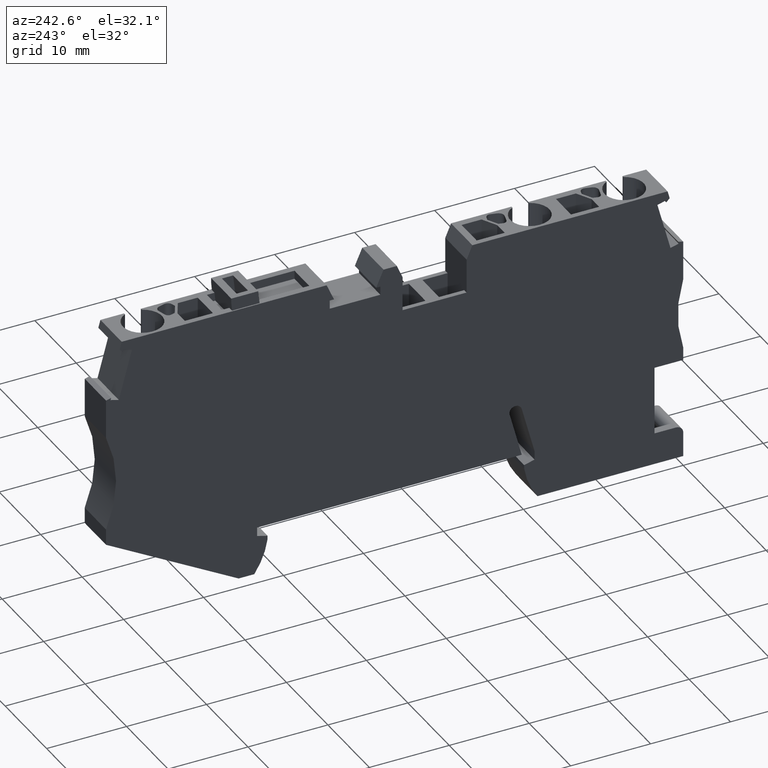
[diagram: clean part render]
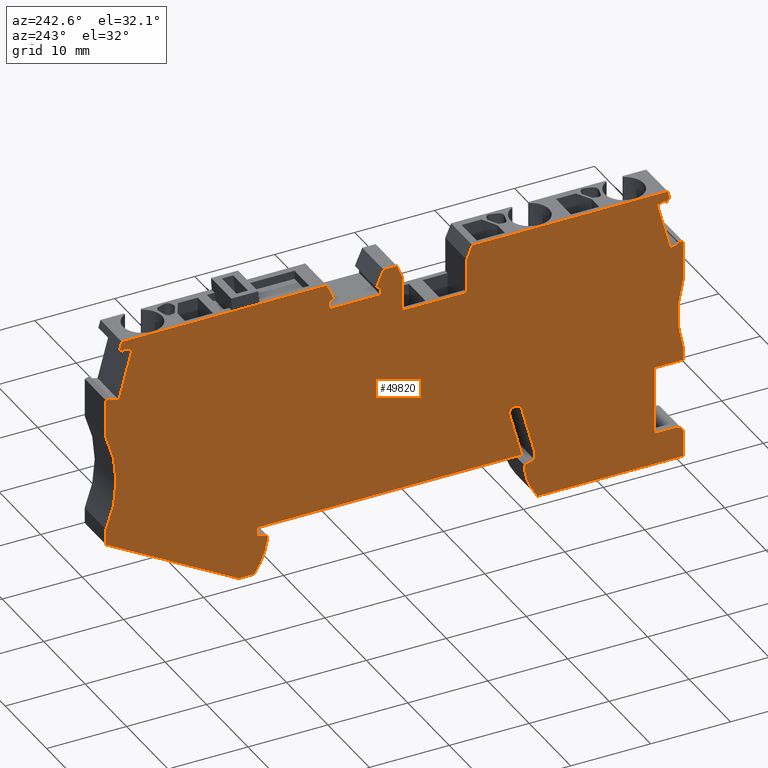
[diagram: same view with one face highlighted and labeled with its STEP entity id]
A machine part, auxiliary view. The second image highlights one B-rep face of the part: STEP entity #49820.
In plain terms, the highlighted planar face has unit normal (1, -0, 0).
Its self-contained STEP definition (entity closure, byte-faithful):
#3720=CARTESIAN_POINT('',(-20.4076385489783,-9.1500000000017,
48.5199999999973));
#3730=VERTEX_POINT('',#3720);
#3760=CARTESIAN_POINT('',(-30.6958559619297,-9.1500000000004,
48.5199999999973));
#3770=DIRECTION('',(-1.,1.2610745780961E-13,0.));
#3780=VECTOR('',#3770,1.);
#3790=LINE('',#3760,#3780);
#3800=CARTESIAN_POINT('',(4.01366750239472,-9.15000000000477,
48.5199999999973));
#3810=VERTEX_POINT('',#3800);
#3820=EDGE_CURVE('',#3810,#3730,#3790,.T.);
#4090=CARTESIAN_POINT('',(48.1299328899745,-10.112719444327,
48.5199999999973));
#4100=VERTEX_POINT('',#4090);
#4150=CARTESIAN_POINT('',(14.0748914776232,-44.1677608565863,
48.5199999999973));
#4160=DIRECTION('',(0.707106781187503,0.707106781185593,0.));
#4170=VECTOR('',#4160,1.);
#4180=LINE('',#4150,#4170);
#4190=CARTESIAN_POINT('',(47.6971897020823,-10.545462632218,
48.5199999999973));
#4200=VERTEX_POINT('',#4190);
#4210=EDGE_CURVE('',#4200,#4100,#4180,.T.);
#5030=CARTESIAN_POINT('',(-19.1288362261254,-10.559370046527,
48.5199999999973));
#5040=VERTEX_POINT('',#5030);
#5090=CARTESIAN_POINT('',(-30.4949591286781,-7.5138265937166,
48.5199999999973));
#5100=DIRECTION('',(0.9659258262891,-0.258819045102404,0.));
#5110=VECTOR('',#5100,1.);
#5120=LINE('',#5090,#5110);
#5130=CARTESIAN_POINT('',(-20.1623768602549,-10.2824336682674,
48.5199999999973));
#5140=VERTEX_POINT('',#5130);
#5150=EDGE_CURVE('',#5140,#5040,#5120,.T.);
#5990=CARTESIAN_POINT('',(-21.4584315387535,-40.4000000000016,
48.5199999999973));
#6000=VERTEX_POINT('',#5990);
#6150=CARTESIAN_POINT('',(-21.4584315387535,-40.4000491064028,
48.5199999999973));
#6160=VERTEX_POINT('',#6150);
#6190=CARTESIAN_POINT('',(-21.4584315387535,-39.8048173925994,
48.5199999999973));
#6200=DIRECTION('',(0.,1.,0.));
#6210=VECTOR('',#6200,1.);
#6220=LINE('',#6190,#6210);
#6230=EDGE_CURVE('',#6160,#6000,#6220,.T.);
#6440=CARTESIAN_POINT('',(-21.7289289220527,-16.1288855555983,
48.5199999999973));
#6450=VERTEX_POINT('',#6440);
#6500=CARTESIAN_POINT('',(-27.8621918696753,-39.0185344922397,
48.5199999999973));
#6510=DIRECTION('',(0.258819045103216,0.965925826288882,0.));
#6520=VECTOR('',#6510,1.);
#6530=LINE('',#6500,#6520);
#6540=CARTESIAN_POINT('',(-21.7994073205285,-16.3919145195456,
48.5199999999973));
#6550=VERTEX_POINT('',#6540);
#6560=EDGE_CURVE('',#6550,#6450,#6530,.T.);
#7010=CARTESIAN_POINT('',(29.6321672216754,-39.8483339501617,
48.5199999999973));
#7020=VERTEX_POINT('',#7010);
#7050=CARTESIAN_POINT('',(-36.6456801825381,-57.6074296381892,
48.5199999999973));
#7060=DIRECTION('',(0.965925826289086,0.258819045102457,0.));
#7070=VECTOR('',#7060,1.);
#7080=LINE('',#7050,#7070);
#7090=CARTESIAN_POINT('',(30.9321672216756,-39.5000000000013,
48.5199999999973));
#7100=VERTEX_POINT('',#7090);
#7110=EDGE_CURVE('',#7020,#7100,#7080,.T.);
#7870=CARTESIAN_POINT('',(21.8446672216768,-12.3250000000016,
48.5199999999973));
#7880=VERTEX_POINT('',#7870);
#8030=CARTESIAN_POINT('',(15.5196672216766,-12.3250000000012,
48.5199999999973));
#8040=VERTEX_POINT('',#8030);
#8070=CARTESIAN_POINT('',(-31.0856969427962,-12.3249999999985,
48.5199999999973));
#8080=DIRECTION('',(-1.,5.79813974610488E-14,0.));
#8090=VECTOR('',#8080,1.);
#8100=LINE('',#8070,#8090);
#8110=EDGE_CURVE('',#7880,#8040,#8100,.T.);
#8320=CARTESIAN_POINT('',(-4.12677643145729,-44.4000000000013,
48.5199999999973));
#8330=VERTEX_POINT('',#8320);
#8380=CARTESIAN_POINT('',(-35.0240117337573,-44.4000000000018,
48.5199999999973));
#8390=DIRECTION('',(-1.,-1.55014889813287E-14,0.));
#8400=VECTOR('',#8390,1.);
#8410=LINE('',#8380,#8400);
#8420=CARTESIAN_POINT('',(-22.3678330870616,-44.4000000000016,
48.5199999999973));
#8430=VERTEX_POINT('',#8420);
#8440=EDGE_CURVE('',#8330,#8430,#8410,.T.);
#8840=CARTESIAN_POINT('',(-34.5328734901456,-40.4000000000016,
48.5199999999973));
#8850=DIRECTION('',(1.,0.,0.));
#8860=VECTOR('',#8850,1.);
#8870=LINE('',#8840,#8860);
#8880=CARTESIAN_POINT('',(-18.7678330870612,-40.4000000000016,
48.5199999999973));
#8890=VERTEX_POINT('',#8880);
#8900=EDGE_CURVE('',#6000,#8890,#8870,.T.);
#9130=CARTESIAN_POINT('',(39.0261399010515,-38.8846282117038,
48.5199999999973));
#9140=DIRECTION('',(0.,0.,-1.));
#9150=DIRECTION('',(-1.,0.,0.));
#9160=AXIS2_PLACEMENT_3D('',#9130,#9140,#9150);
#9170=CIRCLE('',#9160,9.499999999999);
#9180=CARTESIAN_POINT('',(31.2911108748079,-44.4000000000014,
48.5199999999973));
#9190=VERTEX_POINT('',#9180);
#9200=CARTESIAN_POINT('',(29.6321672216751,-40.300000000002,
48.5199999999973));
#9210=VERTEX_POINT('',#9200);
#9220=EDGE_CURVE('',#9190,#9210,#9170,.T.);
#10500=CARTESIAN_POINT('',(-22.3678327783245,-16.3000793279225,
48.5199999999973));
#10510=VERTEX_POINT('',#10500);
#10660=CARTESIAN_POINT('',(-22.3678327783163,-21.2000000000005,
48.5199999999973));
#10670=VERTEX_POINT('',#10660);
#10700=CARTESIAN_POINT('',(-22.3678327783245,-39.6931569607141,
48.5199999999973));
#10710=DIRECTION('',(-2.05391259555654E-15,1.,0.));
#10720=VECTOR('',#10710,1.);
#10730=LINE('',#10700,#10720);
#10740=EDGE_CURVE('',#10670,#10510,#10730,.T.);
#12330=CARTESIAN_POINT('',(21.3167687545897,-11.2550000000016,
48.5199999999973));
#12340=VERTEX_POINT('',#12330);
#12370=CARTESIAN_POINT('',(7.22281664605164,-43.3264318571179,
48.5199999999973));
#12380=DIRECTION('',(0.402320578212711,0.915498854366618,0.));
#12390=VECTOR('',#12380,1.);
#12400=LINE('',#12370,#12390);
#12410=CARTESIAN_POINT('',(22.2418215966518,-9.15000000000501,
48.5199999999973));
#12420=VERTEX_POINT('',#12410);
#12430=EDGE_CURVE('',#12340,#12420,#12400,.T.);
#13180=CARTESIAN_POINT('',(13.4506669409568,-9.15000000000342,
48.5199999999973));
#13190=VERTEX_POINT('',#13180);
#13220=CARTESIAN_POINT('',(-30.6958559619307,-9.15000000000877,
48.5199999999973));
#13230=DIRECTION('',(-1.,-1.21042065259758E-13,0.));
#13240=VECTOR('',#13230,1.);
#13250=LINE('',#13220,#13240);
#13260=CARTESIAN_POINT('',(15.1225128467016,-9.15000000000321,
48.5199999999973));
#13270=VERTEX_POINT('',#13260);
#13280=EDGE_CURVE('',#13270,#13190,#13250,.T.);
#14120=CARTESIAN_POINT('',(49.2637417638806,-16.3919145195449,
48.5199999999973));
#14130=VERTEX_POINT('',#14120);
#14160=CARTESIAN_POINT('',(58.1565448087935,-49.5803073047281,
48.5199999999973));
#14170=DIRECTION('',(0.258819045103503,-0.965925826288805,0.));
#14180=VECTOR('',#14170,1.);
#14190=LINE('',#14160,#14180);
#14200=CARTESIAN_POINT('',(49.1932633654052,-16.1288855555997,
48.5199999999973));
#14210=VERTEX_POINT('',#14200);
#14220=EDGE_CURVE('',#14210,#14130,#14190,.T.);
#14490=CARTESIAN_POINT('',(49.8321672216693,-33.2000000000054,
48.5199999999973));
#14500=VERTEX_POINT('',#14490);
#14680=CARTESIAN_POINT('',(49.8321672216917,-21.2000000000095,
48.5199999999973));
#14690=VERTEX_POINT('',#14680);
#14720=CARTESIAN_POINT('',(63.5798943065489,-27.2000000000332,
48.5199999999973));
#14730=DIRECTION('',(-8.81339598071707E-18,-9.06081931640032E-18,1.));
#14740=DIRECTION('',(1.,-3.91076060424211E-13,8.81339598071354E-18));
#14750=AXIS2_PLACEMENT_3D('',#14720,#14730,#14740);
#14760=CIRCLE('',#14750,15.);
#14770=EDGE_CURVE('',#14690,#14500,#14760,.T.);
#14940=CARTESIAN_POINT('',(-22.3678330870598,-39.6931569228062,
48.5199999999973));
#14950=DIRECTION('',(3.85705356542587E-13,1.,0.));
#14960=VECTOR('',#14950,1.);
#14970=LINE('',#14940,#14960);
#14980=CARTESIAN_POINT('',(-22.3678330870604,-41.3000000000016,
48.5199999999973));
#14990=VERTEX_POINT('',#14980);
#15000=EDGE_CURVE('',#8430,#14990,#14970,.T.);
#15650=CARTESIAN_POINT('',(-20.6655984466231,-10.112719444326,
48.5199999999973));
#15660=VERTEX_POINT('',#15650);
#15710=CARTESIAN_POINT('',(-28.3934111192612,-38.9533089699361,
48.5199999999973));
#15720=DIRECTION('',(-0.258819045102936,-0.965925826288957,0.));
#15730=VECTOR('',#15720,1.);
#15740=LINE('',#15710,#15730);
#15750=EDGE_CURVE('',#3730,#15660,#15740,.T.);
#21910=CARTESIAN_POINT('',(49.8321672216756,-48.5582022579038,
48.5199999999973));
#21920=DIRECTION('',(-8.32667268468867E-17,-1.,0.));
#21930=VECTOR('',#21920,1.);
#21940=LINE('',#21910,#21930);
#21950=CARTESIAN_POINT('',(49.8321672216756,-35.2,48.5199999999973));
#21960=VERTEX_POINT('',#21950);
#21970=EDGE_CURVE('',#14500,#21960,#21940,.T.);
#24870=CARTESIAN_POINT('',(12.7321672216754,-15.1500000000016,
48.5199999999973));
#24880=VERTEX_POINT('',#24870);
#24910=CARTESIAN_POINT('',(12.7321672216755,-44.002895048406,
48.5199999999973));
#24920=DIRECTION('',(-5.53723733531797E-15,1.,0.));
#24930=VECTOR('',#24920,1.);
#24940=LINE('',#24910,#24930);
#24950=CARTESIAN_POINT('',(12.7321672216753,-10.8500000000034,
48.5199999999973));
#24960=VERTEX_POINT('',#24950);
#24970=EDGE_CURVE('',#24880,#24960,#24940,.T.);
#25270=CARTESIAN_POINT('',(-2.1678327783247,-38.4000000000014,
48.5199999999973));
#25280=VERTEX_POINT('',#25270);
#25310=CARTESIAN_POINT('',(-3.14670858760426,-42.0532142545319,
48.5199999999973));
#25320=DIRECTION('',(0.25881904510258,0.965925826289053,0.));
#25330=VECTOR('',#25320,1.);
#25340=LINE('',#25310,#25330);
#25350=CARTESIAN_POINT('',(-0.639544951389198,-32.6963521812904,
48.5199999999973));
#25360=VERTEX_POINT('',#25350);
#25370=EDGE_CURVE('',#25280,#25360,#25340,.T.);
#25630=CARTESIAN_POINT('',(-27.8621918696399,-39.0185344922441,
48.5199999999973));
#25640=DIRECTION('',(0.258819045101928,0.965925826289227,0.));
#25650=VECTOR('',#25640,1.);
#25660=LINE('',#25630,#25650);
#25670=CARTESIAN_POINT('',(-20.232855258731,-10.5454626322169,
48.5199999999973));
#25680=VERTEX_POINT('',#25670);
#25690=EDGE_CURVE('',#25680,#5140,#25660,.T.);
#25920=CARTESIAN_POINT('',(49.8321672216757,-48.5582022579038,
48.5199999999973));
#25930=DIRECTION('',(-5.55111512312578E-17,-1.,0.));
#25940=VECTOR('',#25930,1.);
#25950=LINE('',#25920,#25940);
#25960=CARTESIAN_POINT('',(49.8321672216757,-16.3000793279236,
48.5199999999973));
#25970=VERTEX_POINT('',#25960);
#25980=EDGE_CURVE('',#25970,#14690,#25950,.T.);
#26320=CARTESIAN_POINT('',(-18.7678330870612,-40.1351813420564,
48.5199999999973));
#26330=DIRECTION('',(0.,1.,0.));
#26340=VECTOR('',#26330,1.);
#26350=LINE('',#26320,#26340);
#26360=CARTESIAN_POINT('',(-18.7678330870612,-31.8000000000008,
48.5199999999973));
#26370=VERTEX_POINT('',#26360);
#26380=EDGE_CURVE('',#8890,#26370,#26350,.T.);
#26610=CARTESIAN_POINT('',(-35.0240117337567,-44.3999999999976,
48.5199999999973));
#26620=DIRECTION('',(-1.,5.79120085220097E-14,0.));
#26630=VECTOR('',#26620,1.);
#26640=LINE('',#26610,#26630);
#26650=CARTESIAN_POINT('',(33.2498082777127,-44.4000000000015,
48.5199999999973));
#26660=VERTEX_POINT('',#26650);
#26670=EDGE_CURVE('',#26660,#9190,#26640,.T.);
#29720=CARTESIAN_POINT('',(58.1565448087279,-49.58030730472,
48.5199999999973));
#29730=DIRECTION('',(0.258819045101928,-0.965925826289227,0.));
#29740=VECTOR('',#29730,1.);
#29750=LINE('',#29720,#29740);
#29760=CARTESIAN_POINT('',(47.6267113036061,-10.2824336682681,
48.5199999999973));
#29770=VERTEX_POINT('',#29760);
#29780=EDGE_CURVE('',#29770,#4200,#29750,.T.);
#30070=CARTESIAN_POINT('',(-3.76783277832419,-39.5000000000013,
48.5199999999973));
#30080=VERTEX_POINT('',#30070);
#30110=CARTESIAN_POINT('',(-33.4459564075282,-31.5477707406817,
48.5199999999973));
#30120=DIRECTION('',(0.965925826289041,-0.258819045102623,0.));
#30130=VECTOR('',#30120,1.);
#30140=LINE('',#30110,#30130);
#30150=CARTESIAN_POINT('',(-2.4678327783249,-39.8483339501617,
48.5199999999973));
#30160=VERTEX_POINT('',#30150);
#30170=EDGE_CURVE('',#30080,#30160,#30140,.T.);
#30450=CARTESIAN_POINT('',(-1.15584166251129,-31.8336749683071,
48.5199999999973));
#30460=VERTEX_POINT('',#30450);
#30490=CARTESIAN_POINT('',(-1.38550651789581,-32.6000000000014,
48.5199999999973));
#30500=DIRECTION('',(0.,0.,1.));
#30510=DIRECTION('',(1.,0.,0.));
#30520=AXIS2_PLACEMENT_3D('',#30490,#30500,#30510);
#30530=CIRCLE('',#30520,0.80000000000001);
#30540=CARTESIAN_POINT('',(-2.1582471789276,-32.3929447639187,
48.5199999999973));
#30550=VERTEX_POINT('',#30540);
#30560=EDGE_CURVE('',#30460,#30550,#30530,.T.);
#30860=CARTESIAN_POINT('',(21.8446672216767,-11.2550000000016,
48.5199999999973));
#30870=VERTEX_POINT('',#30860);
#30900=CARTESIAN_POINT('',(-30.9543174626305,-11.2550000000016,
48.5199999999973));
#30910=DIRECTION('',(1.,0.,0.));
#30920=VECTOR('',#30910,1.);
#30930=LINE('',#30900,#30920);
#30940=EDGE_CURVE('',#12340,#30870,#30930,.T.);
#31150=CARTESIAN_POINT('',(-3.76783277832419,-38.3999999999931,
48.5199999999973));
#31160=VERTEX_POINT('',#31150);
#31190=CARTESIAN_POINT('',(-3.76783277832419,-41.9769497935081,
48.5199999999973));
#31200=DIRECTION('',(0.,-1.,0.));
#31210=VECTOR('',#31200,1.);
#31220=LINE('',#31190,#31210);
#31230=EDGE_CURVE('',#31160,#30080,#31220,.T.);
#31460=CARTESIAN_POINT('',(46.5931706694759,-10.5593700465279,
48.5199999999973));
#31470=VERTEX_POINT('',#31460);
#31520=CARTESIAN_POINT('',(-33.5041072035475,-32.0213709685254,
48.5199999999973));
#31530=DIRECTION('',(0.9659258262891,0.258819045102404,0.));
#31540=VECTOR('',#31530,1.);
#31550=LINE('',#31520,#31540);
#31560=EDGE_CURVE('',#31470,#29770,#31550,.T.);
#32050=CARTESIAN_POINT('',(-2.46783277832346,-42.136569722682,
48.5199999999973));
#32060=DIRECTION('',(6.29260532569731E-13,-1.,0.));
#32070=VECTOR('',#32060,1.);
#32080=LINE('',#32050,#32070);
#32090=CARTESIAN_POINT('',(-2.46783277832461,-40.3000000000022,
48.5199999999973));
#32100=VERTEX_POINT('',#32090);
#32110=EDGE_CURVE('',#30160,#32100,#32080,.T.);
#33660=CARTESIAN_POINT('',(-20.7658666864001,-16.6688508978053,
48.5199999999973));
#33670=VERTEX_POINT('',#33660);
#33720=CARTESIAN_POINT('',(-31.2733580505142,-13.8533770723114,
48.5199999999973));
#33730=DIRECTION('',(-0.96592582628901,0.25881904510274,0.));
#33740=VECTOR('',#33730,1.);
#33750=LINE('',#33720,#33740);
#33760=EDGE_CURVE('',#33670,#6550,#33750,.T.);
#33960=CARTESIAN_POINT('',(29.6321672216711,-46.0779541276646,
48.5199999999973));
#33970=DIRECTION('',(6.9022565440946E-13,1.,0.));
#33980=VECTOR('',#33970,1.);
#33990=LINE('',#33960,#33980);
#34000=EDGE_CURVE('',#9210,#7020,#33990,.T.);
#35960=CARTESIAN_POINT('',(47.8719729923295,-9.15000000000206,
48.5199999999973));
#35970=VERTEX_POINT('',#35960);
#36000=CARTESIAN_POINT('',(58.7239074281488,-49.6499706748183,
48.5199999999973));
#36010=DIRECTION('',(0.258819045102926,-0.96592582628896,0.));
#36020=VECTOR('',#36010,1.);
#36030=LINE('',#36000,#36020);
#36040=EDGE_CURVE('',#35970,#4100,#36030,.T.);
#36600=CARTESIAN_POINT('',(48.2302011297503,-16.6688508978053,
48.5199999999973));
#36610=VERTEX_POINT('',#36600);
#36640=CARTESIAN_POINT('',(-34.3354672334353,-38.7922550583032,
48.5199999999973));
#36650=DIRECTION('',(-0.965925826288933,-0.258819045103026,0.));
#36660=VECTOR('',#36650,1.);
#36670=LINE('',#36640,#36660);
#36680=EDGE_CURVE('',#14130,#36610,#36670,.T.);
#37130=CARTESIAN_POINT('',(30.9321672216756,-46.2375740568389,
48.5199999999973));
#37140=DIRECTION('',(0.,1.,0.));
#37150=VECTOR('',#37140,1.);
#37160=LINE('',#37130,#37150);
#37170=CARTESIAN_POINT('',(30.9321672216757,-38.4000000000014,
48.5199999999973));
#37180=VERTEX_POINT('',#37170);
#37190=EDGE_CURVE('',#7100,#37180,#37160,.T.);
#38960=CARTESIAN_POINT('',(-33.4769262663805,-31.8000000000008,
48.5199999999973));
#38970=DIRECTION('',(-1.,0.,0.));
#38980=VECTOR('',#38970,1.);
#38990=LINE('',#38960,#38980);
#39000=CARTESIAN_POINT('',(-22.3678327783246,-31.8000000000008,
48.5199999999973));
#39010=VERTEX_POINT('',#39000);
#39020=EDGE_CURVE('',#26370,#39010,#38990,.T.);
#39290=CARTESIAN_POINT('',(-4.69574524451491,-41.8630164687906,
48.5199999999973));
#39300=DIRECTION('',(-0.258819045102717,-0.965925826289016,0.));
#39310=VECTOR('',#39300,1.);
#39320=LINE('',#39290,#39310);
#39330=EDGE_CURVE('',#30550,#31160,#39320,.T.);
#39510=CARTESIAN_POINT('',(19.0732001481594,-44.7814759919552,
48.5199999999973));
#39520=DIRECTION('',(-0.389303997086923,0.921109330021222,0.));
#39530=VECTOR('',#39520,1.);
#39540=LINE('',#39510,#39530);
#39550=CARTESIAN_POINT('',(4.73216722167551,-10.8500000000032,
48.5199999999973));
#39560=VERTEX_POINT('',#39550);
#39570=EDGE_CURVE('',#39560,#3810,#39540,.T.);
#40290=CARTESIAN_POINT('',(-0.588529799346603,-42.3673191137592,
48.5199999999973));
#40300=DIRECTION('',(-0.389303997086923,-0.921109330021222,0.));
#40310=VECTOR('',#40300,1.);
#40320=LINE('',#40290,#40310);
#40330=EDGE_CURVE('',#13190,#24960,#40320,.T.);
#41710=CARTESIAN_POINT('',(-30.695855961931,-9.15000000001113,
48.5199999999973));
#41720=DIRECTION('',(1.,1.1550482792444E-13,0.));
#41730=VECTOR('',#41720,1.);
#41740=LINE('',#41710,#41730);
#41750=EDGE_CURVE('',#12420,#35970,#41740,.T.);
#41940=CARTESIAN_POINT('',(31.4487054040428,-46.3009969707504,
48.5199999999973));
#41950=DIRECTION('',(0.402320578211921,-0.915498854366965,0.));
#41960=VECTOR('',#41950,1.);
#41970=LINE('',#41940,#41960);
#41980=CARTESIAN_POINT('',(16.0475656887622,-11.2550000000016,
48.5199999999973));
#41990=VERTEX_POINT('',#41980);
#42000=EDGE_CURVE('',#13270,#41990,#41970,.T.);
#42240=CARTESIAN_POINT('',(15.5196672216766,-44.345157011923,
48.5199999999973));
#42250=DIRECTION('',(0.,1.,0.));
#42260=VECTOR('',#42250,1.);
#42270=LINE('',#42240,#42260);
#42280=CARTESIAN_POINT('',(15.5196672216767,-11.2550000000016,
48.5199999999973));
#42290=VERTEX_POINT('',#42280);
#42300=EDGE_CURVE('',#8040,#42290,#42270,.T.);
#42560=CARTESIAN_POINT('',(-21.4678330870606,-41.3000000000016,
48.5199999999973));
#42570=DIRECTION('',(0.,0.,1.));
#42580=DIRECTION('',(1.,0.,0.));
#42590=AXIS2_PLACEMENT_3D('',#42560,#42570,#42580);
#42600=CIRCLE('',#42590,0.89999999999984);
#42610=EDGE_CURVE('',#6160,#14990,#42600,.T.);
#43130=CARTESIAN_POINT('',(-29.7042555077718,-1.07406238320151,
48.5199999999973));
#43140=DIRECTION('',(-0.707106781187495,0.7071067811856,0.));
#43150=VECTOR('',#43140,1.);
#43160=LINE('',#43130,#43150);
#43170=EDGE_CURVE('',#25680,#15660,#43160,.T.);
#43350=CARTESIAN_POINT('',(21.8446672216767,-45.1217693596339,
48.5199999999973));
#43360=DIRECTION('',(0.,-1.,0.));
#43370=VECTOR('',#43360,1.);
#43380=LINE('',#43350,#43370);
#43390=EDGE_CURVE('',#30870,#7880,#43380,.T.);
#43890=CARTESIAN_POINT('',(4.73216722167552,-15.1500000000016,
48.5199999999973));
#43900=VERTEX_POINT('',#43890);
#43930=CARTESIAN_POINT('',(-31.4325633273473,-15.1500000000016,
48.5199999999973));
#43940=DIRECTION('',(1.,0.,0.));
#43950=VECTOR('',#43940,1.);
#43960=LINE('',#43930,#43950);
#43970=EDGE_CURVE('',#43900,#24880,#43960,.T.);
#44930=CARTESIAN_POINT('',(-30.9543174626305,-11.2550000000016,
48.5199999999973));
#44940=DIRECTION('',(-1.,0.,0.));
#44950=VECTOR('',#44940,1.);
#44960=LINE('',#44930,#44950);
#44970=EDGE_CURVE('',#41990,#42290,#44960,.T.);
#45180=CARTESIAN_POINT('',(-26.7897303657746,-39.1502162070814,
48.5199999999973));
#45190=DIRECTION('',(0.258819045102715,0.965925826289016,0.));
#45200=VECTOR('',#45190,1.);
#45210=LINE('',#45180,#45200);
#45220=EDGE_CURVE('',#33670,#5040,#45210,.T.);
#46040=CARTESIAN_POINT('',(-11.861805457701,-38.8846282117038,
48.5199999999973));
#46050=DIRECTION('',(0.,0.,1.));
#46060=DIRECTION('',(1.,0.,0.));
#46070=AXIS2_PLACEMENT_3D('',#46040,#46050,#46060);
#46080=CIRCLE('',#46070,9.49999999999899);
#46090=EDGE_CURVE('',#8330,#32100,#46080,.T.);
#46290=CARTESIAN_POINT('',(4.73216722167557,-43.0206185611828,
48.5199999999973));
#46300=DIRECTION('',(-2.76167977375508E-15,1.,0.));
#46310=VECTOR('',#46300,1.);
#46320=LINE('',#46290,#46310);
#46330=EDGE_CURVE('',#43900,#39560,#46320,.T.);
#47960=CARTESIAN_POINT('',(-31.8869546500592,-18.8507203460334,
48.5199999999973));
#47970=DIRECTION('',(-0.965925826290942,-0.25881904509553,0.));
#47980=VECTOR('',#47970,1.);
#47990=LINE('',#47960,#47980);
#48000=EDGE_CURVE('',#6450,#10510,#47990,.T.);
#48220=CARTESIAN_POINT('',(57.0111146149278,-49.4396661613293,
48.5199999999973));
#48230=DIRECTION('',(-0.258819045102705,0.965925826289019,0.));
#48240=VECTOR('',#48230,1.);
#48250=LINE('',#48220,#48240);
#48260=EDGE_CURVE('',#36610,#31470,#48250,.T.);
#48460=CARTESIAN_POINT('',(-22.3678327783246,-39.6931569607141,
48.5199999999973));
#48470=DIRECTION('',(-2.05391259555654E-15,1.,0.));
#48480=VECTOR('',#48470,1.);
#48490=LINE('',#48460,#48480);
#48500=CARTESIAN_POINT('',(-22.3678327783211,-30.2000000000038,
48.5199999999973));
#48510=VERTEX_POINT('',#48500);
#48520=EDGE_CURVE('',#39010,#48510,#48490,.T.);
#48890=CARTESIAN_POINT('',(-15.48205,-15.952198,48.5199999999973));
#48900=DIRECTION('',(0.,0.,1.));
#48910=DIRECTION('',(1.,0.,0.));
#48920=AXIS2_PLACEMENT_3D('',#48890,#48900,#48910);
#48930=PLANE('',#48920);
#48940=ORIENTED_EDGE('',*,*,#36040,.T.);
#48950=ORIENTED_EDGE('',*,*,#41750,.T.);
#48960=ORIENTED_EDGE('',*,*,#12430,.T.);
#48970=ORIENTED_EDGE('',*,*,#30940,.F.);
#48980=ORIENTED_EDGE('',*,*,#43390,.F.);
#48990=ORIENTED_EDGE('',*,*,#8110,.F.);
#49000=ORIENTED_EDGE('',*,*,#42300,.F.);
#49010=ORIENTED_EDGE('',*,*,#44970,.T.);
#49020=ORIENTED_EDGE('',*,*,#42000,.T.);
#49030=ORIENTED_EDGE('',*,*,#13280,.F.);
#49040=ORIENTED_EDGE('',*,*,#40330,.F.);
#49050=ORIENTED_EDGE('',*,*,#24970,.T.);
#49060=ORIENTED_EDGE('',*,*,#43970,.T.);
#49070=ORIENTED_EDGE('',*,*,#46330,.F.);
#49080=ORIENTED_EDGE('',*,*,#39570,.F.);
#49090=ORIENTED_EDGE('',*,*,#3820,.F.);
#49100=ORIENTED_EDGE('',*,*,#15750,.F.);
#49110=ORIENTED_EDGE('',*,*,#43170,.T.);
#49120=ORIENTED_EDGE('',*,*,#25690,.F.);
#49130=ORIENTED_EDGE('',*,*,#5150,.F.);
#49140=ORIENTED_EDGE('',*,*,#45220,.T.);
#49150=ORIENTED_EDGE('',*,*,#33760,.F.);
#49160=ORIENTED_EDGE('',*,*,#6560,.F.);
#49170=ORIENTED_EDGE('',*,*,#48000,.F.);
#49180=ORIENTED_EDGE('',*,*,#10740,.T.);
#49190=CARTESIAN_POINT('',(-36.6769207995724,-25.6999999999945,
48.5199999999973));
#49200=DIRECTION('',(-8.81339598071707E-18,-9.06081931640032E-18,1.));
#49210=DIRECTION('',(1.,-3.91076060424211E-13,8.81339598071354E-18));
#49220=AXIS2_PLACEMENT_3D('',#49190,#49200,#49210);
#49230=CIRCLE('',#49220,15.);
#49240=EDGE_CURVE('',#48510,#10670,#49230,.T.);
#49250=ORIENTED_EDGE('',*,*,#49240,.T.);
#49260=ORIENTED_EDGE('',*,*,#48520,.T.);
#49270=ORIENTED_EDGE('',*,*,#39020,.T.);
#49280=ORIENTED_EDGE('',*,*,#26380,.T.);
#49290=ORIENTED_EDGE('',*,*,#8900,.T.);
#49300=ORIENTED_EDGE('',*,*,#6230,.T.);
#49310=ORIENTED_EDGE('',*,*,#42610,.F.);
#49320=ORIENTED_EDGE('',*,*,#15000,.T.);
#49330=ORIENTED_EDGE('',*,*,#8440,.T.);
#49340=ORIENTED_EDGE('',*,*,#46090,.F.);
#49350=ORIENTED_EDGE('',*,*,#32110,.T.);
#49360=ORIENTED_EDGE('',*,*,#30170,.T.);
#49370=ORIENTED_EDGE('',*,*,#31230,.T.);
#49380=ORIENTED_EDGE('',*,*,#39330,.T.);
#49390=ORIENTED_EDGE('',*,*,#30560,.T.);
#49400=CARTESIAN_POINT('',(-1.31569302979179,-32.5151788497186,
48.5199999999973));
#49410=DIRECTION('',(0.,0.,1.));
#49420=DIRECTION('',(1.,0.,0.));
#49430=AXIS2_PLACEMENT_3D('',#49400,#49410,#49420);
#49440=CIRCLE('',#49430,0.700000000000238);
#49450=EDGE_CURVE('',#25360,#30460,#49440,.T.);
#49460=ORIENTED_EDGE('',*,*,#49450,.T.);
#49470=ORIENTED_EDGE('',*,*,#25370,.T.);
#49480=CARTESIAN_POINT('',(-34.2873043683398,-38.4000000000014,
48.5199999999973));
#49490=DIRECTION('',(-1.,0.,0.));
#49500=VECTOR('',#49490,1.);
#49510=LINE('',#49480,#49500);
#49520=EDGE_CURVE('',#37180,#25280,#49510,.T.);
#49530=ORIENTED_EDGE('',*,*,#49520,.T.);
#49540=ORIENTED_EDGE('',*,*,#37190,.T.);
#49550=ORIENTED_EDGE('',*,*,#7110,.T.);
#49560=ORIENTED_EDGE('',*,*,#34000,.T.);
#49570=ORIENTED_EDGE('',*,*,#9220,.T.);
#49580=ORIENTED_EDGE('',*,*,#26670,.T.);
#49590=CARTESIAN_POINT('',(-40.0149278039411,-85.0477494685245,
48.5199999999973));
#49600=DIRECTION('',(-0.874435210897321,-0.485142311021166,0.));
#49610=VECTOR('',#49600,1.);
#49620=LINE('',#49590,#49610);
#49630=EDGE_CURVE('',#21960,#26660,#49620,.T.);
#49640=ORIENTED_EDGE('',*,*,#49630,.T.);
#49650=ORIENTED_EDGE('',*,*,#21970,.T.);
#49660=ORIENTED_EDGE('',*,*,#14770,.T.);
#49670=ORIENTED_EDGE('',*,*,#25980,.T.);
#49680=CARTESIAN_POINT('',(-28.9808259507884,4.81779854510728,
48.5199999999973));
#49690=DIRECTION('',(0.965925826290939,-0.25881904509554,0.));
#49700=VECTOR('',#49690,1.);
#49710=LINE('',#49680,#49700);
#49720=EDGE_CURVE('',#14210,#25970,#49710,.T.);
#49730=ORIENTED_EDGE('',*,*,#49720,.T.);
#49740=ORIENTED_EDGE('',*,*,#14220,.F.);
#49750=ORIENTED_EDGE('',*,*,#36680,.F.);
#49760=ORIENTED_EDGE('',*,*,#48260,.F.);
#49770=ORIENTED_EDGE('',*,*,#31560,.F.);
#49780=ORIENTED_EDGE('',*,*,#29780,.F.);
#49790=ORIENTED_EDGE('',*,*,#4210,.F.);
#49800=EDGE_LOOP('',(#49790,#49780,#49770,#49760,#49750,#49740,#49730,
#49670,#49660,#49650,#49640,#49580,#49570,#49560,#49550,#49540,#49530,
#49470,#49460,#49390,#49380,#49370,#49360,#49350,#49340,#49330,#49320,
#49310,#49300,#49290,#49280,#49270,#49260,#49250,#49180,#49170,#49160,
#49150,#49140,#49130,#49120,#49110,#49100,#49090,#49080,#49070,#49060,
#49050,#49040,#49030,#49020,#49010,#49000,#48990,#48980,#48970,#48960,
#48950,#48940));
#49810=FACE_OUTER_BOUND('',#49800,.T.);
#49820=ADVANCED_FACE('',(#49810),#48930,.F.);